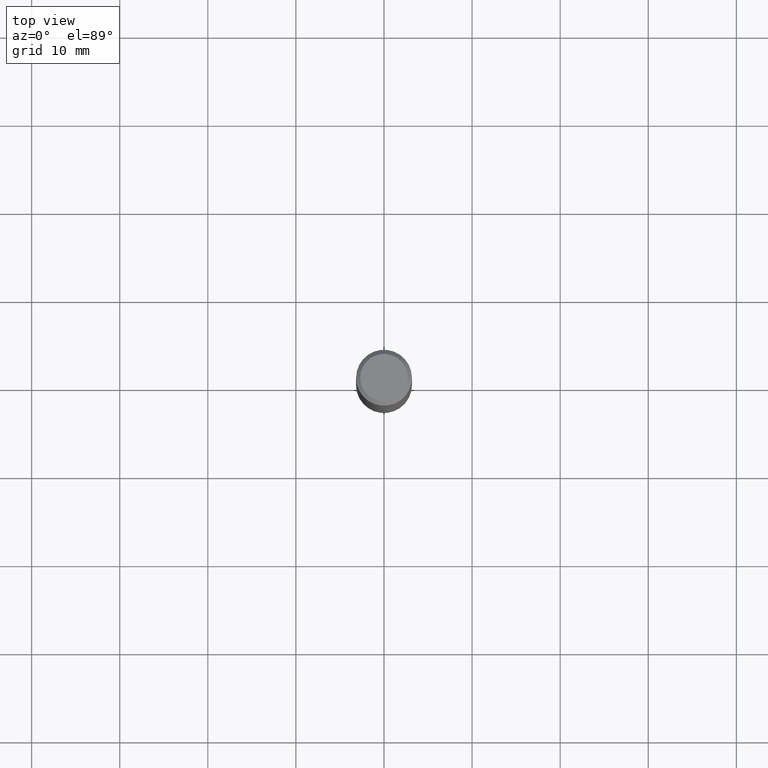
[diagram: clean part render]
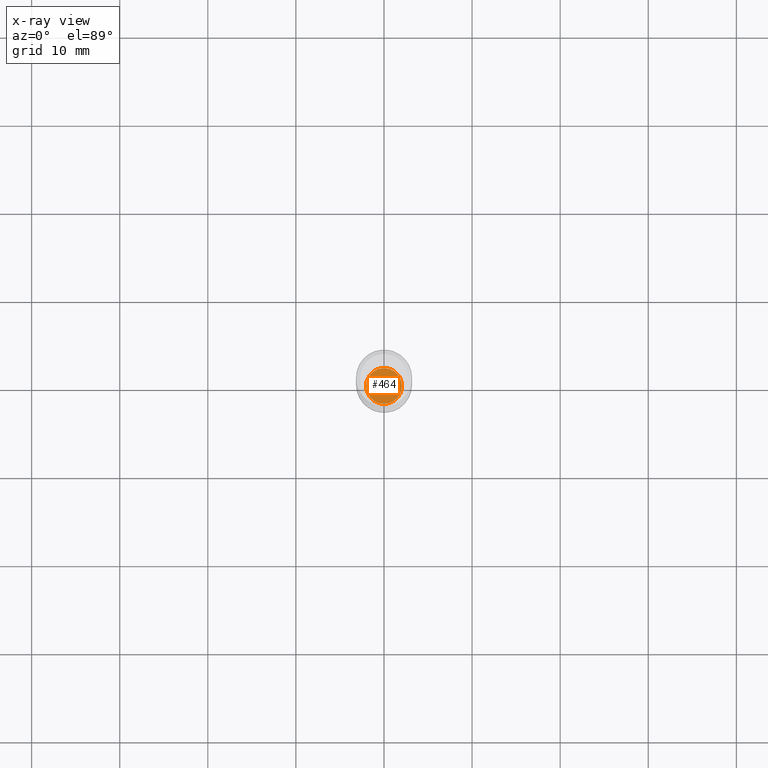
[diagram: x-ray — body ghosted, one internal face saturated and labeled with its STEP entity id]
A machine part, top view, then the same camera in x-ray: the body is ghosted and one INTERNAL B-rep face — a face not visible from any outside direction — is saturated and labeled: STEP entity #464.
In plain terms, the highlighted planar face has unit normal (-0, 0, 1).
Its self-contained STEP definition (entity closure, byte-faithful):
#9 = CARTESIAN_POINT ( 'NONE',  ( 1.316475442586645047E-30, -1.492449556612563060E-14, -2.161000000000000032 ) ) ;
#12 = FACE_OUTER_BOUND ( 'NONE', #163, .T. ) ;
#15 = VERTEX_POINT ( 'NONE', #339 ) ;
#44 = CIRCLE ( 'NONE', #93, 0.08000000000000000167 ) ;
#48 = PLANE ( 'NONE',  #210 ) ;
#51 = DIRECTION ( 'NONE',  ( 1.000000000000000000, -6.982962677686265922E-15, 4.876176775795935793E-29 ) ) ;
#75 = CARTESIAN_POINT ( 'NONE',  ( -0.08000000000000000167, -6.974007757457847126E-15, -2.161000000000000476 ) ) ;
#93 = AXIS2_PLACEMENT_3D ( 'NONE', #187, #145, #300 ) ;
#114 = AXIS2_PLACEMENT_3D ( 'NONE', #222, #336, #406 ) ;
#138 = EDGE_CURVE ( 'NONE', #15, #243, #232, .T. ) ;
#145 = DIRECTION ( 'NONE',  ( -2.445468806185136597E-29, 3.491481338843145583E-15, 1.000000000000000000 ) ) ;
#163 = EDGE_LOOP ( 'NONE', ( #354, #358 ) ) ;
#187 = CARTESIAN_POINT ( 'NONE',  ( 5.284658090166081280E-29, -7.545091173240039769E-15, -2.161000000000000476 ) ) ;
#210 = AXIS2_PLACEMENT_3D ( 'NONE', #9, #399, #51 ) ;
#222 = CARTESIAN_POINT ( 'NONE',  ( 5.284658090166081280E-29, -7.545091173240039769E-15, -2.161000000000000476 ) ) ;
#232 = CIRCLE ( 'NONE', #114, 0.08000000000000000167 ) ;
#243 = VERTEX_POINT ( 'NONE', #75 ) ;
#260 = EDGE_CURVE ( 'NONE', #243, #15, #44, .T. ) ;
#300 = DIRECTION ( 'NONE',  ( 1.000000000000000000, -6.982962677686259611E-15, 0.000000000000000000 ) ) ;
#336 = DIRECTION ( 'NONE',  ( -2.445468806185136597E-29, 3.491481338843145583E-15, 1.000000000000000000 ) ) ;
#339 = CARTESIAN_POINT ( 'NONE',  ( 0.08000000000000000167, -8.103728187454939844E-15, -2.161000000000000476 ) ) ;
#354 = ORIENTED_EDGE ( 'NONE', *, *, #138, .F. ) ;
#358 = ORIENTED_EDGE ( 'NONE', *, *, #260, .F. ) ;
#399 = DIRECTION ( 'NONE',  ( -2.438088387897960049E-29, 3.491481338843145188E-15, 1.000000000000000000 ) ) ;
#406 = DIRECTION ( 'NONE',  ( 1.000000000000000000, -6.982962677686259611E-15, 0.000000000000000000 ) ) ;
#464 = ADVANCED_FACE ( 'NONE', ( #12 ), #48, .F. ) ;